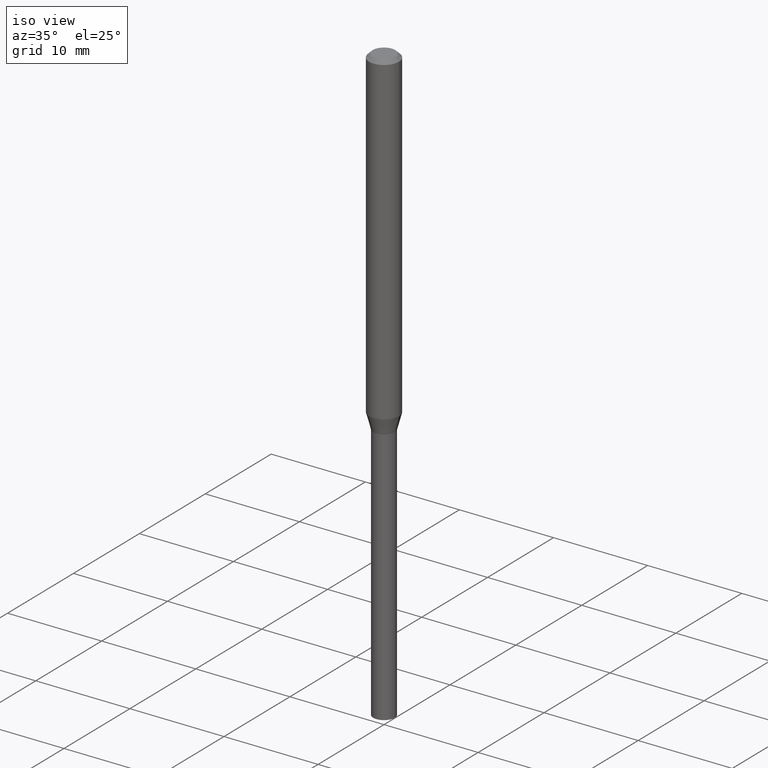
[diagram: clean part render]
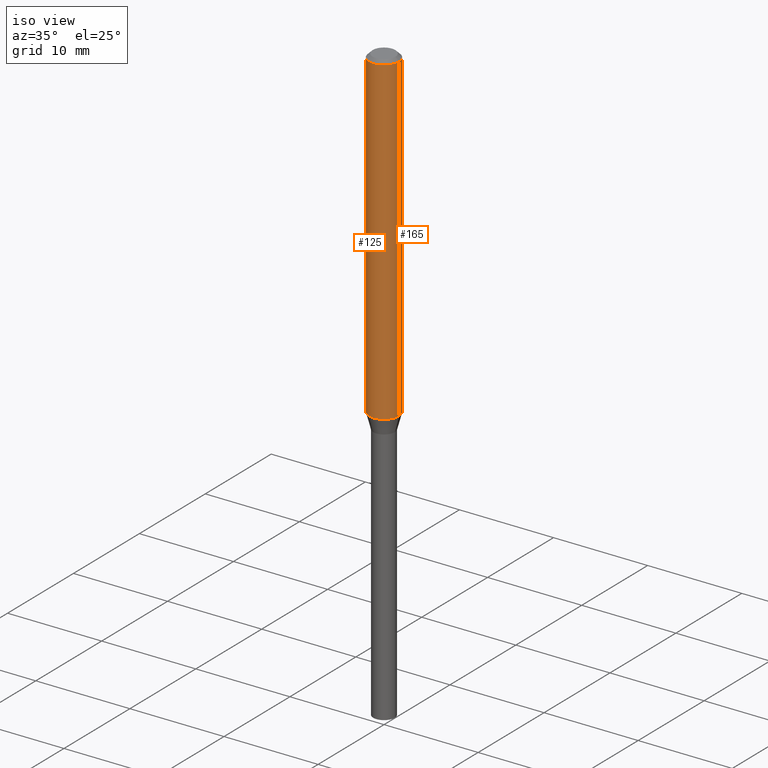
[diagram: same view with one multi-face feature highlighted, each face labeled with its STEP entity id]
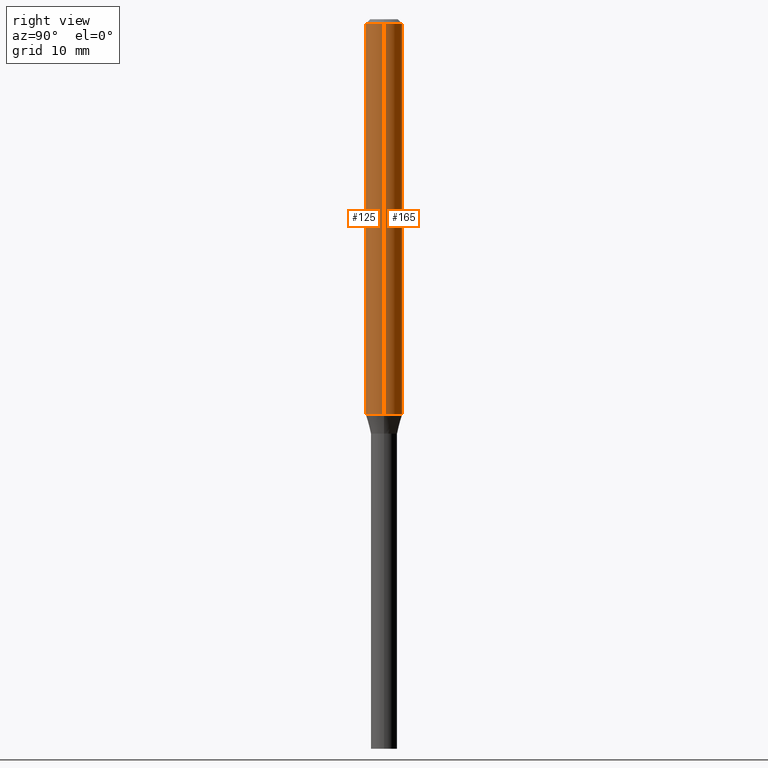
[diagram: same view with one multi-face feature highlighted, each face labeled with its STEP entity id]
A machine part, iso view. The highlighted faces form ONE feature: a constant-radius fillet chain: 2 tangent blend faces with common blend radius 1.5875 mm. The faces share edges in the B-rep.
A second angle (right view) of the same feature is appended — it is thin or edge-on in the first view.
Their STEP definitions:
[1] entity #125 (Cylinder):
#1 = CARTESIAN_POINT ( 'NONE',  ( -0.06250000000000000000, -1.947032775455282295E-15, -0.01499999999999999944 ) ) ;
#8 = FACE_OUTER_BOUND ( 'NONE', #218, .T. ) ;
#22 = ORIENTED_EDGE ( 'NONE', *, *, #457, .F. ) ;
#24 = AXIS2_PLACEMENT_3D ( 'NONE', #437, #152, #262 ) ;
#28 = VERTEX_POINT ( 'NONE', #1 ) ;
#34 = EDGE_CURVE ( 'NONE', #144, #288, #359, .T. ) ;
#67 = EDGE_CURVE ( 'NONE', #179, #28, #209, .T. ) ;
#70 = DIRECTION ( 'NONE',  ( 1.000000000000000000, -6.982962677686262766E-15, 0.000000000000000000 ) ) ;
#97 = CIRCLE ( 'NONE', #241, 0.06250000000000000000 ) ;
#125 = ADVANCED_FACE ( 'NONE', ( #8 ), #149, .T. ) ;
#144 = VERTEX_POINT ( 'NONE', #296 ) ;
#149 = CYLINDRICAL_SURFACE ( 'NONE', #24, 0.06250000000000000000 ) ;
#152 = DIRECTION ( 'NONE',  ( -2.445468806185136597E-29, 3.491481338843145583E-15, 1.000000000000000000 ) ) ;
#173 = ORIENTED_EDGE ( 'NONE', *, *, #205, .T. ) ;
#176 = CARTESIAN_POINT ( 'NONE',  ( -0.06250000000000000000, 4.440892098500626162E-16, -3.074334431409316114E-30 ) ) ;
#179 = VERTEX_POINT ( 'NONE', #405 ) ;
#183 = CARTESIAN_POINT ( 'NONE',  ( 0.06250000000000000000, -4.364351673553916694E-16, 3.047610484872459871E-30 ) ) ;
#186 = CARTESIAN_POINT ( 'NONE',  ( 3.312849962705256373E-29, -4.729871750528042350E-15, -1.354689110867543844 ) ) ;
#205 = EDGE_CURVE ( 'NONE', #179, #144, #409, .T. ) ;
#209 = LINE ( 'NONE', #176, #249 ) ;
#211 = ORIENTED_EDGE ( 'NONE', *, *, #34, .T. ) ;
#218 = EDGE_LOOP ( 'NONE', ( #234, #173, #211, #22 ) ) ;
#234 = ORIENTED_EDGE ( 'NONE', *, *, #67, .F. ) ;
#241 = AXIS2_PLACEMENT_3D ( 'NONE', #425, #316, #281 ) ;
#249 = VECTOR ( 'NONE', #444, 39.37007874015748143 ) ;
#262 = DIRECTION ( 'NONE',  ( 1.000000000000000000, -6.982962677686266711E-15, 4.876176775795935793E-29 ) ) ;
#281 = DIRECTION ( 'NONE',  ( 1.000000000000000000, -6.982962677686266711E-15, 0.000000000000000000 ) ) ;
#288 = VERTEX_POINT ( 'NONE', #447 ) ;
#296 = CARTESIAN_POINT ( 'NONE',  ( 0.06250000000000000000, -5.166306917883434019E-15, -1.354689110867543844 ) ) ;
#316 = DIRECTION ( 'NONE',  ( -2.445468806185136597E-29, 3.491481338843145583E-15, 1.000000000000000000 ) ) ;
#359 = LINE ( 'NONE', #183, #416 ) ;
#376 = AXIS2_PLACEMENT_3D ( 'NONE', #186, #399, #70 ) ;
#399 = DIRECTION ( 'NONE',  ( -2.445468806185136597E-29, 3.491481338843145583E-15, 1.000000000000000000 ) ) ;
#405 = CARTESIAN_POINT ( 'NONE',  ( -0.06250000000000000000, -4.285782540677979733E-15, -1.354689110867543844 ) ) ;
#409 = CIRCLE ( 'NONE', #376, 0.06250000000000000000 ) ;
#416 = VECTOR ( 'NONE', #426, 39.37007874015748143 ) ;
#425 = CARTESIAN_POINT ( 'NONE',  ( 3.668203209277705088E-31, -5.237222008264718399E-17, -0.01499999999999999944 ) ) ;
#426 = DIRECTION ( 'NONE',  ( -2.445468806185136877E-29, 3.491481338843145188E-15, 1.000000000000000000 ) ) ;
#437 = CARTESIAN_POINT ( 'NONE',  ( 0.000000000000000000, 0.000000000000000000, 0.000000000000000000 ) ) ;
#444 = DIRECTION ( 'NONE',  ( -2.445468806185136877E-29, 3.491481338843145188E-15, 1.000000000000000000 ) ) ;
#447 = CARTESIAN_POINT ( 'NONE',  ( 0.06250000000000000000, -4.888073874380388472E-16, -0.01499999999999999944 ) ) ;
#457 = EDGE_CURVE ( 'NONE', #28, #288, #97, .T. ) ;
[2] entity #165 (Cylinder):
#1 = CARTESIAN_POINT ( 'NONE',  ( -0.06250000000000000000, -1.947032775455282295E-15, -0.01499999999999999944 ) ) ;
#6 = DIRECTION ( 'NONE',  ( -2.445468806185136597E-29, 3.491481338843145583E-15, 1.000000000000000000 ) ) ;
#23 = CIRCLE ( 'NONE', #454, 0.06250000000000000000 ) ;
#28 = VERTEX_POINT ( 'NONE', #1 ) ;
#34 = EDGE_CURVE ( 'NONE', #144, #288, #359, .T. ) ;
#40 = EDGE_CURVE ( 'NONE', #144, #179, #23, .T. ) ;
#41 = FACE_OUTER_BOUND ( 'NONE', #424, .T. ) ;
#60 = DIRECTION ( 'NONE',  ( -2.445468806185136597E-29, 3.491481338843145583E-15, 1.000000000000000000 ) ) ;
#65 = CIRCLE ( 'NONE', #394, 0.06250000000000000000 ) ;
#67 = EDGE_CURVE ( 'NONE', #179, #28, #209, .T. ) ;
#73 = DIRECTION ( 'NONE',  ( 1.000000000000000000, -6.982962677686266711E-15, 4.876176775795935793E-29 ) ) ;
#135 = EDGE_CURVE ( 'NONE', #288, #28, #65, .T. ) ;
#144 = VERTEX_POINT ( 'NONE', #296 ) ;
#148 = DIRECTION ( 'NONE',  ( 1.000000000000000000, -6.982962677686262766E-15, 0.000000000000000000 ) ) ;
#154 = CARTESIAN_POINT ( 'NONE',  ( 0.000000000000000000, 0.000000000000000000, 0.000000000000000000 ) ) ;
#164 = ORIENTED_EDGE ( 'NONE', *, *, #34, .F. ) ;
#165 = ADVANCED_FACE ( 'NONE', ( #41 ), #443, .T. ) ;
#176 = CARTESIAN_POINT ( 'NONE',  ( -0.06250000000000000000, 4.440892098500626162E-16, -3.074334431409316114E-30 ) ) ;
#179 = VERTEX_POINT ( 'NONE', #405 ) ;
#183 = CARTESIAN_POINT ( 'NONE',  ( 0.06250000000000000000, -4.364351673553916694E-16, 3.047610484872459871E-30 ) ) ;
#199 = AXIS2_PLACEMENT_3D ( 'NONE', #154, #298, #73 ) ;
#209 = LINE ( 'NONE', #176, #249 ) ;
#239 = ORIENTED_EDGE ( 'NONE', *, *, #135, .F. ) ;
#249 = VECTOR ( 'NONE', #444, 39.37007874015748143 ) ;
#260 = DIRECTION ( 'NONE',  ( 1.000000000000000000, -6.982962677686266711E-15, 0.000000000000000000 ) ) ;
#278 = ORIENTED_EDGE ( 'NONE', *, *, #67, .T. ) ;
#288 = VERTEX_POINT ( 'NONE', #447 ) ;
#296 = CARTESIAN_POINT ( 'NONE',  ( 0.06250000000000000000, -5.166306917883434019E-15, -1.354689110867543844 ) ) ;
#298 = DIRECTION ( 'NONE',  ( -2.445468806185136597E-29, 3.491481338843145583E-15, 1.000000000000000000 ) ) ;
#324 = CARTESIAN_POINT ( 'NONE',  ( 3.312849962705256373E-29, -4.729871750528042350E-15, -1.354689110867543844 ) ) ;
#329 = CARTESIAN_POINT ( 'NONE',  ( 3.668203209277705088E-31, -5.237222008264718399E-17, -0.01499999999999999944 ) ) ;
#359 = LINE ( 'NONE', #183, #416 ) ;
#394 = AXIS2_PLACEMENT_3D ( 'NONE', #329, #6, #260 ) ;
#405 = CARTESIAN_POINT ( 'NONE',  ( -0.06250000000000000000, -4.285782540677979733E-15, -1.354689110867543844 ) ) ;
#416 = VECTOR ( 'NONE', #426, 39.37007874015748143 ) ;
#424 = EDGE_LOOP ( 'NONE', ( #458, #278, #239, #164 ) ) ;
#426 = DIRECTION ( 'NONE',  ( -2.445468806185136877E-29, 3.491481338843145188E-15, 1.000000000000000000 ) ) ;
#443 = CYLINDRICAL_SURFACE ( 'NONE', #199, 0.06250000000000000000 ) ;
#444 = DIRECTION ( 'NONE',  ( -2.445468806185136877E-29, 3.491481338843145188E-15, 1.000000000000000000 ) ) ;
#447 = CARTESIAN_POINT ( 'NONE',  ( 0.06250000000000000000, -4.888073874380388472E-16, -0.01499999999999999944 ) ) ;
#454 = AXIS2_PLACEMENT_3D ( 'NONE', #324, #60, #148 ) ;
#458 = ORIENTED_EDGE ( 'NONE', *, *, #40, .T. ) ;